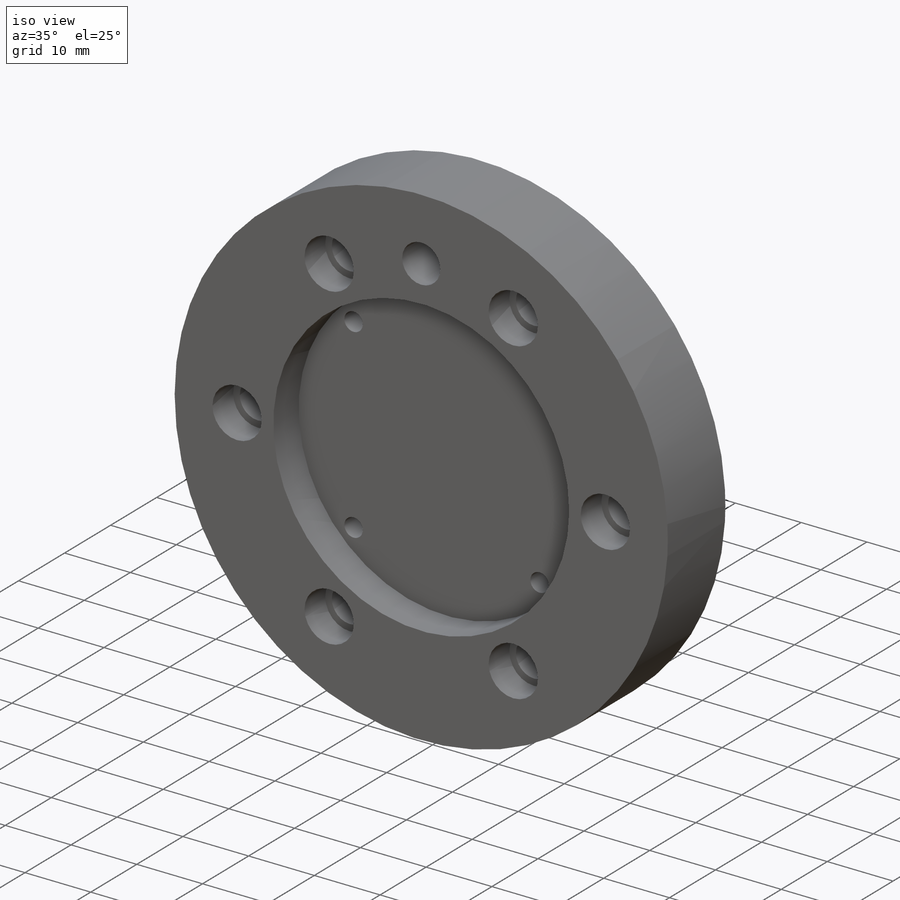
[diagram: iso view]
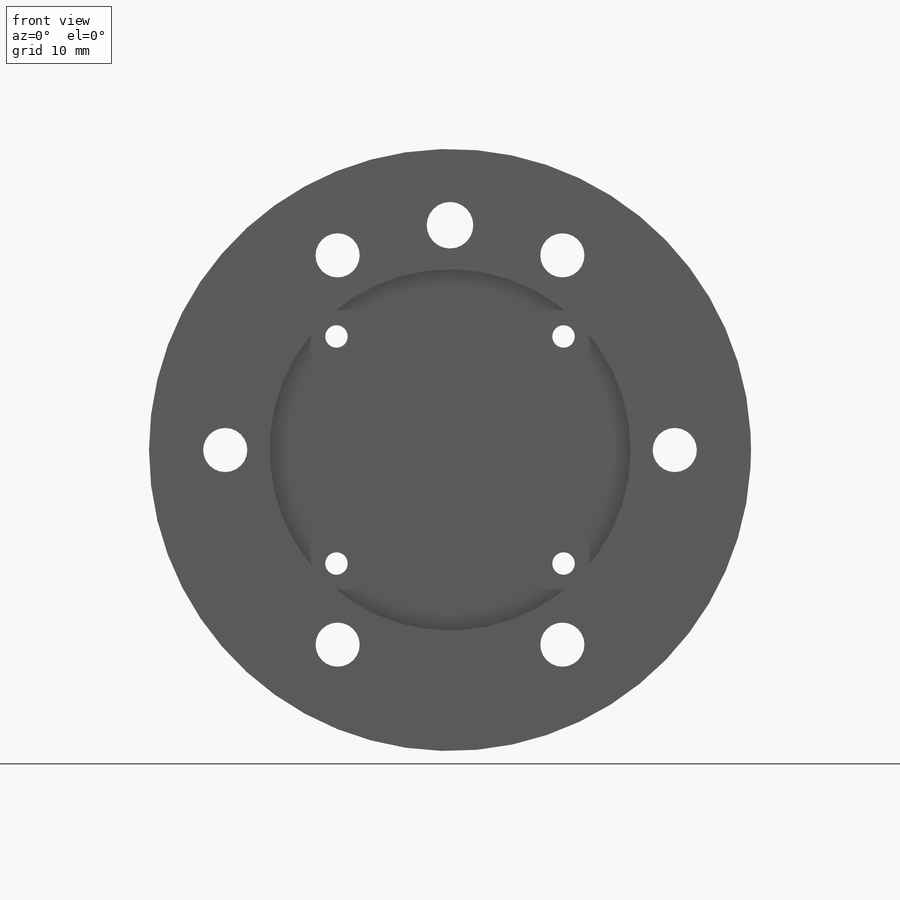
[diagram: front view]
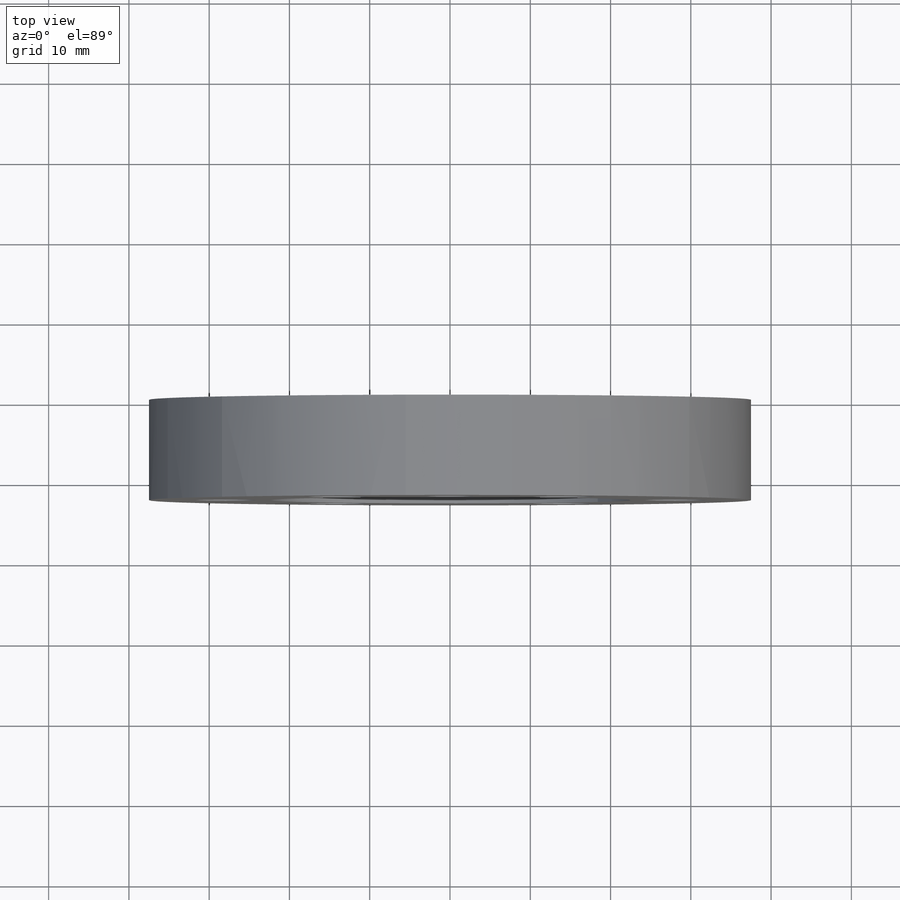
[diagram: top view]
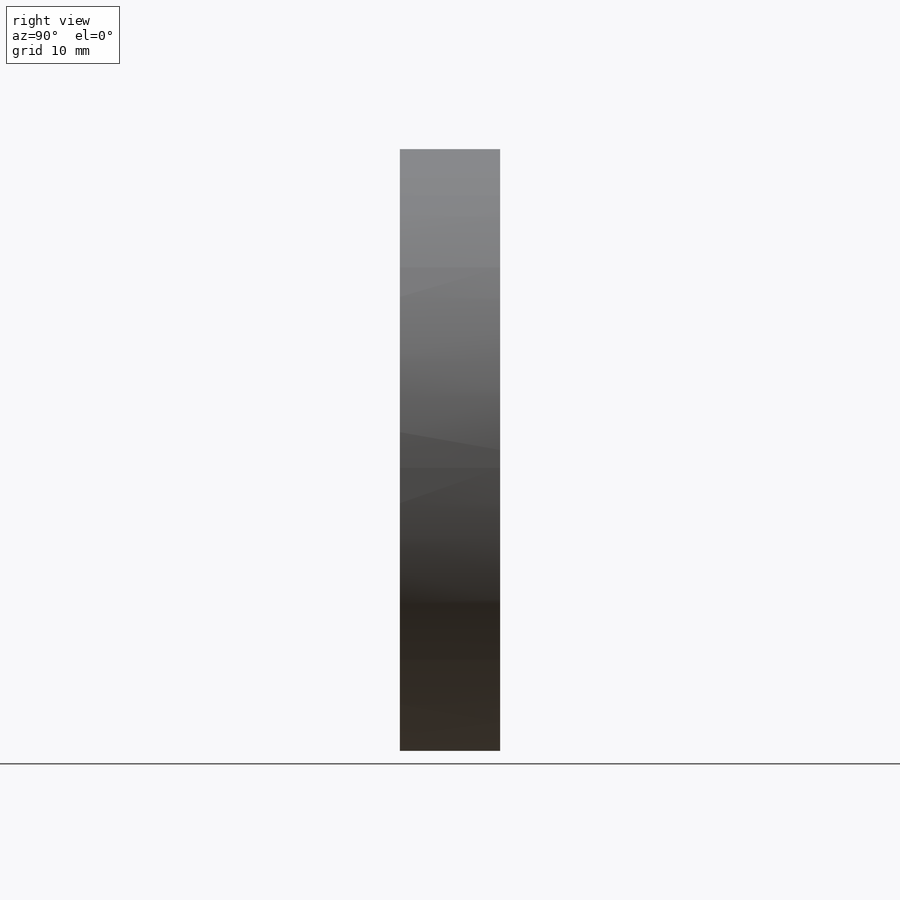
[diagram: right view]
SOLIDWORKS PART (.sldprt)
format: sldprt  version: not decoded by parser v0  size: 280,064 bytes
history: native  units: mm
features: sketch x6, cut_extrude x3, material x1, extrude x1, hole x1, pattern_circular x1 (+13 scaffold rows collapsed)
feature tree (26):
  scaffold x13  (default folders/planes/origin — collapsed)
  material  "1060 Alloy"
  sketch  "Sketch1"  dims[D1=75.0mm]
  extrude  "Boss-Extrude1"  Depth=12.5mm
  sketch  "Sketch2"  dims[D1=45.0mm]
  cut_extrude  "Cut-Extrude1"  Depth=5.5mm
  hole  "CBORE for M5 Hex Head Bolt1"  Diameter=5.5mm Depth=12.5mm
  sketch  "Sketch4"  dims[D1=28.0mm D2=27.5mm]
  sketch  "Sketch3"  dims[hole-wizard template sketch: 42 standard entries collapsed; hole parameters kept: c12.Thru Hole Depth=12.5mm c12.C'Bore Dia.=7.5mm c12.C'Bore Depth=4.5mm]
  pattern_circular  "CirPattern1"  Count=6 Angle=360deg
  sketch  "Sketch5"  dims[D2=5.8mm D1=28.0mm]
  cut_extrude  "Cut-Extrude2"  [1 undecoded]
  sketch  "Sketch6"  dims[D2=2.8mm D1=40.0mm]
  cut_extrude  "Cut-Extrude3"  [1 undecoded]
decode coverage: 10 of 12 modeling features carry decoded parameters
note: ~ marks probable driven/reference dimensions
note: 2 parameter values undecoded
note: suppression state not decoded; provenance and decode notes live in map.json
